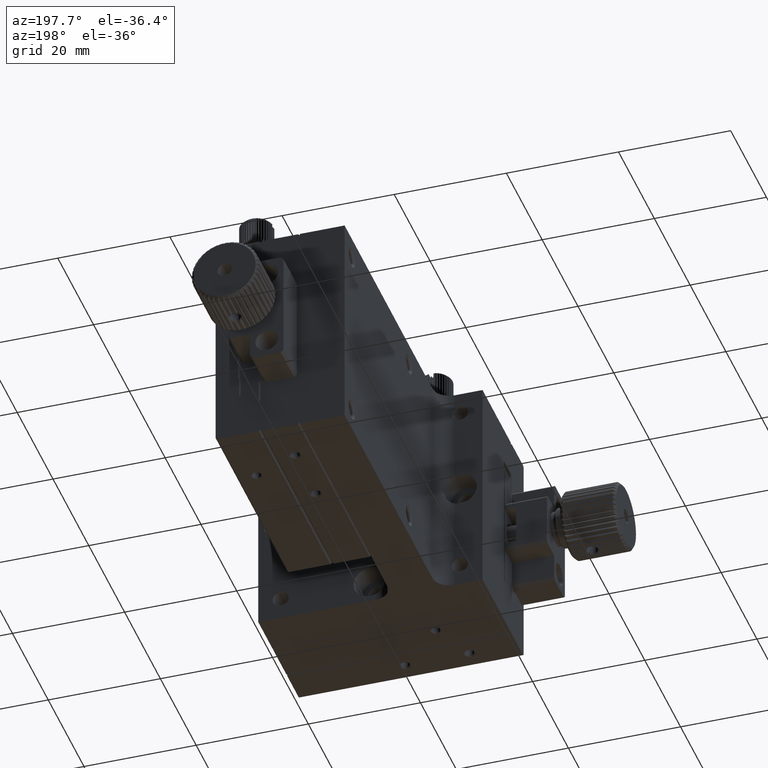
[diagram: clean part render]
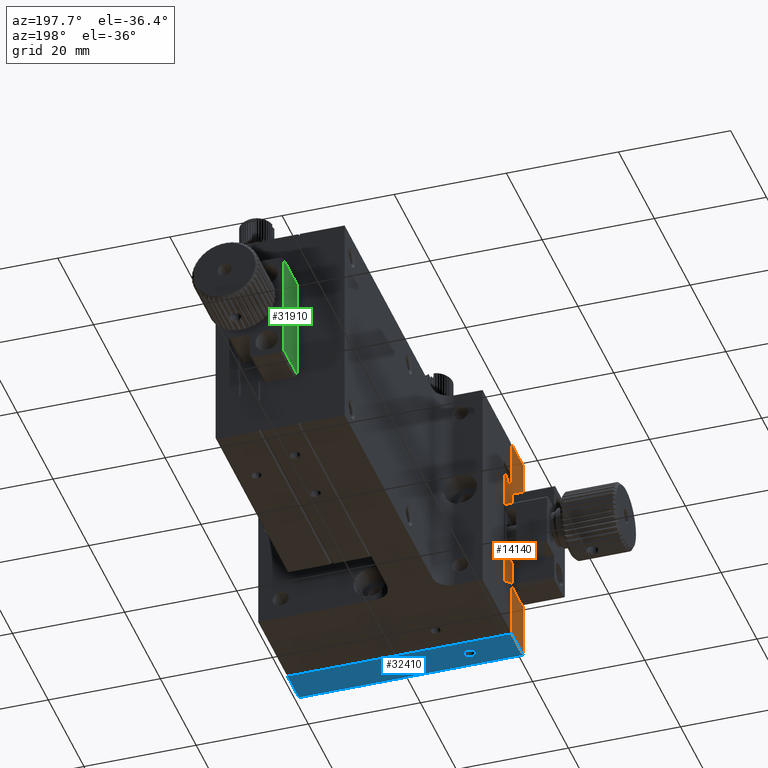
[diagram: same view with three faces highlighted in distinct colors, each labeled with its STEP entity id]
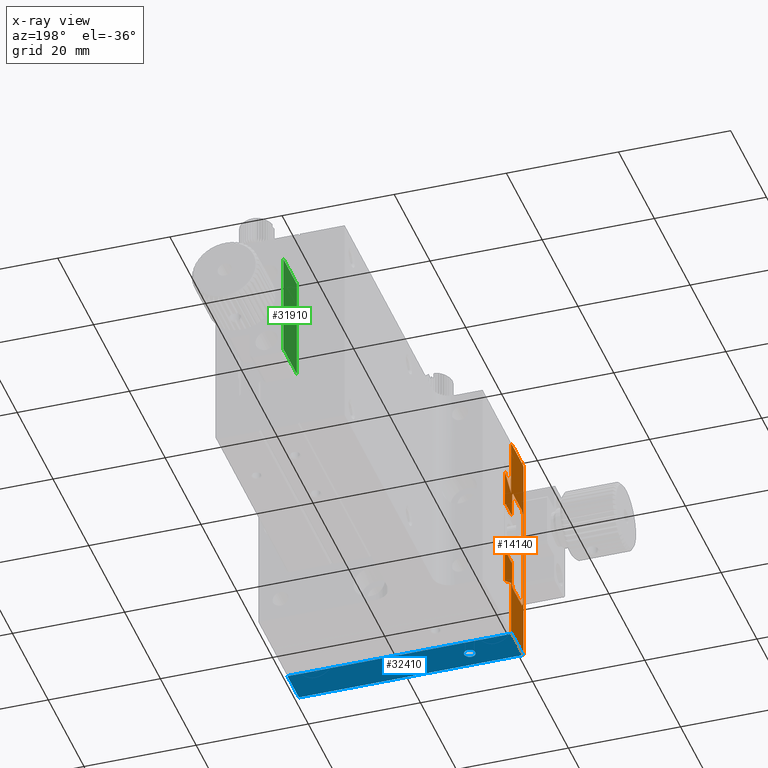
[diagram: x-ray of the same camera — body ghosted, the three highlighted faces saturated]
A machine part, auxiliary view with three faces highlighted in distinct colors.
The next image is the same camera in x-ray (body ghosted, the three faces saturated) — at least one of them is partly hidden behind the body in this view.
Their STEP definitions:

[orange] entity #14140 — the highlighted planar face has unit normal (1, 0, 0).
#35 = CARTESIAN_POINT ( 'NONE',  ( 0.000000000000000000, -13.99999999999999822, -30.00000000000000000 ) ) ;
#114 = VECTOR ( 'NONE', #3054, 1000.000000000000000 ) ;
#203 = CARTESIAN_POINT ( 'NONE',  ( 3.469446951953614189E-15, -4.999999999999999112, -25.00000000000000000 ) ) ;
#278 = VERTEX_POINT ( 'NONE', #31884 ) ;
#562 = EDGE_CURVE ( 'NONE', #25679, #34753, #24656, .T. ) ;
#711 = DIRECTION ( 'NONE',  ( 0.000000000000000000, 0.7071067811865300312, -0.7071067811865650032 ) ) ;
#809 = VECTOR ( 'NONE', #8856, 1000.000000000000000 ) ;
#824 = CARTESIAN_POINT ( 'NONE',  ( 0.000000000000000000, -15.00000000000000000, -10.00000000000000000 ) ) ;
#1086 = LINE ( 'NONE', #9198, #22220 ) ;
#1370 = EDGE_CURVE ( 'NONE', #16006, #10210, #1086, .T. ) ;
#1486 = DIRECTION ( 'NONE',  ( -0.000000000000000000, -0.7071067811865500152, -0.7071067811865450192 ) ) ;
#1489 = ORIENTED_EDGE ( 'NONE', *, *, #16721, .F. ) ;
#1648 = VERTEX_POINT ( 'NONE', #19262 ) ;
#2486 = CARTESIAN_POINT ( 'NONE',  ( 0.000000000000000000, -15.00000000000000000, 1.421085471520200056E-14 ) ) ;
#2587 = VECTOR ( 'NONE', #5242, 1000.000000000000114 ) ;
#2704 = LINE ( 'NONE', #32384, #7880 ) ;
#2976 = ORIENTED_EDGE ( 'NONE', *, *, #12379, .F. ) ;
#3054 = DIRECTION ( 'NONE',  ( -0.000000000000000000, -0.000000000000000000, 1.000000000000000000 ) ) ;
#3238 = DIRECTION ( 'NONE',  ( 0.000000000000000000, -1.000000000000000000, -0.000000000000000000 ) ) ;
#3309 = ORIENTED_EDGE ( 'NONE', *, *, #13661, .F. ) ;
#3414 = VECTOR ( 'NONE', #32353, 1000.000000000000000 ) ;
#3677 = VECTOR ( 'NONE', #20493, 1000.000000000000000 ) ;
#4073 = CARTESIAN_POINT ( 'NONE',  ( 2.602085213965210642E-15, -4.499999999999999112, -15.50000000000000000 ) ) ;
#4106 = DIRECTION ( 'NONE',  ( 0.000000000000000000, 0.000000000000000000, -1.000000000000000000 ) ) ;
#4202 = LINE ( 'NONE', #15243, #28749 ) ;
#4284 = VECTOR ( 'NONE', #29656, 1000.000000000000000 ) ;
#4341 = VECTOR ( 'NONE', #11619, 1000.000000000000000 ) ;
#4504 = LINE ( 'NONE', #15539, #33157 ) ;
#4592 = ORIENTED_EDGE ( 'NONE', *, *, #31726, .F. ) ;
#5070 = EDGE_CURVE ( 'NONE', #25679, #19334, #32038, .T. ) ;
#5130 = EDGE_CURVE ( 'NONE', #31221, #24751, #33293, .T. ) ;
#5242 = DIRECTION ( 'NONE',  ( -0.000000000000000000, 0.7071067811865474617, -0.7071067811865474617 ) ) ;
#5287 = DIRECTION ( 'NONE',  ( 0.000000000000000000, -1.000000000000000000, -0.000000000000000000 ) ) ;
#5405 = CARTESIAN_POINT ( 'NONE',  ( 0.000000000000000000, -7.999999999999998224, -29.50000000000000711 ) ) ;
#5572 = VECTOR ( 'NONE', #5287, 1000.000000000000000 ) ;
#5610 = DIRECTION ( 'NONE',  ( -0.000000000000000000, -0.000000000000000000, 1.000000000000000000 ) ) ;
#5719 = LINE ( 'NONE', #26037, #13377 ) ;
#6038 = ORIENTED_EDGE ( 'NONE', *, *, #17908, .F. ) ;
#6097 = CARTESIAN_POINT ( 'NONE',  ( 0.000000000000000000, -8.000000000000000000, -0.2999999999999830025 ) ) ;
#6373 = VERTEX_POINT ( 'NONE', #32626 ) ;
#6736 = ORIENTED_EDGE ( 'NONE', *, *, #5070, .F. ) ;
#6745 = DIRECTION ( 'NONE',  ( -0.000000000000000000, -0.000000000000000000, 1.000000000000000000 ) ) ;
#7230 = EDGE_LOOP ( 'NONE', ( #19764, #23193, #7529, #6736, #30066, #20356, #6038, #20309, #3309, #34310, #23786, #1489, #32119, #27583, #26343, #19244, #11470, #26400, #28842, #13613, #4592, #28046, #30242, #34987, #8528, #2976 ) ) ;
#7529 = ORIENTED_EDGE ( 'NONE', *, *, #33487, .F. ) ;
#7586 = EDGE_CURVE ( 'NONE', #15746, #6373, #25032, .T. ) ;
#7700 = CARTESIAN_POINT ( 'NONE',  ( 0.000000000000000000, -8.299999999999979394, -40.00000000000000000 ) ) ;
#7880 = VECTOR ( 'NONE', #3238, 1000.000000000000000 ) ;
#8349 = DIRECTION ( 'NONE',  ( 0.000000000000000000, 0.8661031798070120136, -0.4998652637743319360 ) ) ;
#8402 = DIRECTION ( 'NONE',  ( -0.000000000000000000, 1.000000000000000000, 0.000000000000000000 ) ) ;
#8452 = LINE ( 'NONE', #24673, #3414 ) ;
#8528 = ORIENTED_EDGE ( 'NONE', *, *, #20319, .F. ) ;
#8856 = DIRECTION ( 'NONE',  ( 0.000000000000000000, 0.7071067811865667796, -0.7071067811865283659 ) ) ;
#9139 = LINE ( 'NONE', #17428, #3677 ) ;
#9198 = CARTESIAN_POINT ( 'NONE',  ( 0.000000000000000000, -15.00000000000000000, -0.2999999999999830025 ) ) ;
#9252 = VERTEX_POINT ( 'NONE', #22319 ) ;
#9873 = CARTESIAN_POINT ( 'NONE',  ( 0.000000000000000000, -14.69999999999999041, -40.00000000000000711 ) ) ;
#10210 = VERTEX_POINT ( 'NONE', #16192 ) ;
#10268 = EDGE_CURVE ( 'NONE', #9252, #1648, #19447, .T. ) ;
#11083 = DIRECTION ( 'NONE',  ( 0.000000000000000000, 0.000000000000000000, -1.000000000000000000 ) ) ;
#11449 = EDGE_CURVE ( 'NONE', #32330, #18632, #20445, .T. ) ;
#11470 = ORIENTED_EDGE ( 'NONE', *, *, #25536, .F. ) ;
#11514 = EDGE_CURVE ( 'NONE', #30296, #20113, #29204, .T. ) ;
#11619 = DIRECTION ( 'NONE',  ( 0.000000000000000000, -0.8659960399471552384, -0.5000508562094910792 ) ) ;
#11714 = CARTESIAN_POINT ( 'NONE',  ( 2.602085213965210642E-15, -4.500000000000000888, -24.50000000000000355 ) ) ;
#12089 = DIRECTION ( 'NONE',  ( 0.000000000000000000, -0.000000000000000000, 1.000000000000000000 ) ) ;
#12134 = EDGE_CURVE ( 'NONE', #15746, #21549, #30401, .T. ) ;
#12256 = VECTOR ( 'NONE', #4106, 1000.000000000000000 ) ;
#12352 = CARTESIAN_POINT ( 'NONE',  ( 0.000000000000000000, -15.00000000000000000, -39.69999999999999574 ) ) ;
#12379 = EDGE_CURVE ( 'NONE', #24751, #18364, #16490, .T. ) ;
#13114 = VECTOR ( 'NONE', #34434, 1000.000000000000000 ) ;
#13132 = VERTEX_POINT ( 'NONE', #29169 ) ;
#13377 = VECTOR ( 'NONE', #6745, 1000.000000000000000 ) ;
#13613 = ORIENTED_EDGE ( 'NONE', *, *, #23631, .F. ) ;
#13627 = CARTESIAN_POINT ( 'NONE',  ( -1.734723475976807094E-15, -8.000000000000001776, -10.49999999999999822 ) ) ;
#13661 = EDGE_CURVE ( 'NONE', #6373, #10210, #27332, .T. ) ;
#13772 = CARTESIAN_POINT ( 'NONE',  ( 0.000000000000000000, -8.000000000000000000, -29.50000000000000355 ) ) ;
#13923 = LINE ( 'NONE', #25083, #16995 ) ;
#14140 = ADVANCED_FACE ( 'NONE', ( #17030 ), #24959, .F. ) ;
#14287 = CARTESIAN_POINT ( 'NONE',  ( -8.673617379884035472E-16, -4.499999999999999112, -8.478999999999979664 ) ) ;
#14306 = VERTEX_POINT ( 'NONE', #35 ) ;
#14334 = CARTESIAN_POINT ( 'NONE',  ( 0.000000000000000000, -15.00000000000000000, 0.000000000000000000 ) ) ;
#14468 = EDGE_CURVE ( 'NONE', #14306, #14660, #8452, .T. ) ;
#14660 = VERTEX_POINT ( 'NONE', #17802 ) ;
#14929 = VECTOR ( 'NONE', #33111, 1000.000000000000114 ) ;
#15056 = VERTEX_POINT ( 'NONE', #31743 ) ;
#15232 = CARTESIAN_POINT ( 'NONE',  ( 0.000000000000000000, -8.499999999999998224, -15.00000000000000000 ) ) ;
#15243 = CARTESIAN_POINT ( 'NONE',  ( 3.469446951953614189E-15, -4.499999999999999112, -15.50000000000000000 ) ) ;
#15539 = CARTESIAN_POINT ( 'NONE',  ( 0.000000000000000000, -13.99999999999999822, -10.00000000000000000 ) ) ;
#15746 = VERTEX_POINT ( 'NONE', #19206 ) ;
#15920 = CARTESIAN_POINT ( 'NONE',  ( 0.000000000000000000, -8.499999999999998224, 0.000000000000000000 ) ) ;
#16006 = VERTEX_POINT ( 'NONE', #12352 ) ;
#16141 = EDGE_CURVE ( 'NONE', #28383, #20845, #4202, .T. ) ;
#16192 = CARTESIAN_POINT ( 'NONE',  ( 0.000000000000000000, -15.00000000000000000, -0.2999999999999829470 ) ) ;
#16443 = CARTESIAN_POINT ( 'NONE',  ( 3.469446951953614189E-15, -8.499999999999998224, -10.50000000000000000 ) ) ;
#16490 = LINE ( 'NONE', #35537, #5572 ) ;
#16505 = VECTOR ( 'NONE', #8349, 1000.000000000000227 ) ;
#16711 = EDGE_CURVE ( 'NONE', #26831, #28383, #32745, .T. ) ;
#16721 = EDGE_CURVE ( 'NONE', #18632, #21549, #16772, .T. ) ;
#16772 = LINE ( 'NONE', #27741, #114 ) ;
#16995 = VECTOR ( 'NONE', #5610, 1000.000000000000000 ) ;
#17030 = FACE_OUTER_BOUND ( 'NONE', #7230, .T. ) ;
#17200 = EDGE_CURVE ( 'NONE', #278, #31221, #5719, .T. ) ;
#17428 = CARTESIAN_POINT ( 'NONE',  ( 0.000000000000000000, -14.49999999999999822, 0.000000000000000000 ) ) ;
#17802 = CARTESIAN_POINT ( 'NONE',  ( 0.000000000000000000, -14.49999999999999822, -29.50000000000000355 ) ) ;
#17908 = EDGE_CURVE ( 'NONE', #16006, #35061, #30964, .T. ) ;
#18364 = VERTEX_POINT ( 'NONE', #31260 ) ;
#18632 = VERTEX_POINT ( 'NONE', #13627 ) ;
#19071 = DIRECTION ( 'NONE',  ( -0.000000000000000000, 1.000000000000000000, 0.000000000000000000 ) ) ;
#19110 = CARTESIAN_POINT ( 'NONE',  ( 0.000000000000000000, -15.00000000000000000, -15.00000000000000000 ) ) ;
#19206 = CARTESIAN_POINT ( 'NONE',  ( 0.000000000000000000, -8.299999999999981171, 1.284779574395322754E-14 ) ) ;
#19238 = CARTESIAN_POINT ( 'NONE',  ( 0.000000000000000000, -14.69999999999998863, 1.421085471520200056E-14 ) ) ;
#19244 = ORIENTED_EDGE ( 'NONE', *, *, #16711, .F. ) ;
#19262 = CARTESIAN_POINT ( 'NONE',  ( 2.602085213965210642E-15, -9.000000000000000000, -10.00000000000000178 ) ) ;
#19334 = VERTEX_POINT ( 'NONE', #5405 ) ;
#19447 = LINE ( 'NONE', #824, #27905 ) ;
#19764 = ORIENTED_EDGE ( 'NONE', *, *, #5130, .F. ) ;
#20113 = VERTEX_POINT ( 'NONE', #28996 ) ;
#20309 = ORIENTED_EDGE ( 'NONE', *, *, #1370, .T. ) ;
#20319 = EDGE_CURVE ( 'NONE', #18364, #30296, #28088, .T. ) ;
#20356 = ORIENTED_EDGE ( 'NONE', *, *, #33977, .F. ) ;
#20445 = LINE ( 'NONE', #33529, #4341 ) ;
#20493 = DIRECTION ( 'NONE',  ( -0.000000000000000000, -0.000000000000000000, 1.000000000000000000 ) ) ;
#20678 = AXIS2_PLACEMENT_3D ( 'NONE', #14334, #33006, #11083 ) ;
#20845 = VERTEX_POINT ( 'NONE', #4073 ) ;
#20957 = CARTESIAN_POINT ( 'NONE',  ( 0.000000000000000000, -8.000000000000000000, 0.000000000000000000 ) ) ;
#21508 = CARTESIAN_POINT ( 'NONE',  ( 0.000000000000000000, -8.000000000000000000, -39.69999999999999574 ) ) ;
#21549 = VERTEX_POINT ( 'NONE', #24924 ) ;
#22099 = VECTOR ( 'NONE', #24851, 1000.000000000000000 ) ;
#22131 = LINE ( 'NONE', #33037, #29699 ) ;
#22220 = VECTOR ( 'NONE', #12089, 1000.000000000000000 ) ;
#22319 = CARTESIAN_POINT ( 'NONE',  ( 0.000000000000000000, -13.99999999999999822, -10.00000000000000000 ) ) ;
#22551 = CARTESIAN_POINT ( 'NONE',  ( 0.000000000000000000, -8.499999999999998224, 0.000000000000000000 ) ) ;
#22907 = CARTESIAN_POINT ( 'NONE',  ( 0.000000000000000000, -8.499999999999998224, -29.50000000000000000 ) ) ;
#23193 = ORIENTED_EDGE ( 'NONE', *, *, #17200, .F. ) ;
#23341 = LINE ( 'NONE', #15920, #13114 ) ;
#23503 = CARTESIAN_POINT ( 'NONE',  ( 0.000000000000000000, -9.000000000000000000, -30.00000000000000000 ) ) ;
#23544 = VECTOR ( 'NONE', #35094, 1000.000000000000000 ) ;
#23631 = EDGE_CURVE ( 'NONE', #13132, #9252, #4504, .T. ) ;
#23771 = EDGE_CURVE ( 'NONE', #20113, #14306, #2704, .T. ) ;
#23786 = ORIENTED_EDGE ( 'NONE', *, *, #12134, .T. ) ;
#24460 = DIRECTION ( 'NONE',  ( 0.000000000000000000, -0.7071067811865637820, -0.7071067811865312525 ) ) ;
#24656 = LINE ( 'NONE', #7700, #4284 ) ;
#24673 = CARTESIAN_POINT ( 'NONE',  ( 0.000000000000000000, -14.49999999999999822, -29.50000000000000355 ) ) ;
#24751 = VERTEX_POINT ( 'NONE', #29015 ) ;
#24851 = DIRECTION ( 'NONE',  ( 0.000000000000000000, -1.000000000000000000, -0.000000000000000000 ) ) ;
#24861 = CARTESIAN_POINT ( 'NONE',  ( 0.000000000000000000, -8.299999999999977618, -40.00000000000000000 ) ) ;
#24924 = CARTESIAN_POINT ( 'NONE',  ( 0.000000000000000000, -8.000000000000000000, -0.2999999999999828915 ) ) ;
#24959 = PLANE ( 'NONE',  #20678 ) ;
#25032 = LINE ( 'NONE', #2486, #22099 ) ;
#25083 = CARTESIAN_POINT ( 'NONE',  ( 0.000000000000000000, -4.499999999999999112, 0.000000000000000000 ) ) ;
#25423 = CARTESIAN_POINT ( 'NONE',  ( 0.000000000000000000, -15.00000000000000000, -39.70000000000000284 ) ) ;
#25536 = EDGE_CURVE ( 'NONE', #15056, #26831, #23341, .T. ) ;
#25679 = VERTEX_POINT ( 'NONE', #21508 ) ;
#26037 = CARTESIAN_POINT ( 'NONE',  ( 0.000000000000000000, -4.499999999999999112, 0.000000000000000000 ) ) ;
#26201 = DIRECTION ( 'NONE',  ( -0.000000000000000000, 0.7071067811865474617, -0.7071067811865474617 ) ) ;
#26343 = ORIENTED_EDGE ( 'NONE', *, *, #16141, .F. ) ;
#26400 = ORIENTED_EDGE ( 'NONE', *, *, #32325, .F. ) ;
#26831 = VERTEX_POINT ( 'NONE', #15232 ) ;
#27238 = LINE ( 'NONE', #16443, #2587 ) ;
#27332 = LINE ( 'NONE', #19238, #30388 ) ;
#27447 = LINE ( 'NONE', #13772, #16505 ) ;
#27583 = ORIENTED_EDGE ( 'NONE', *, *, #32323, .F. ) ;
#27741 = CARTESIAN_POINT ( 'NONE',  ( 0.000000000000000000, -8.000000000000000000, 0.000000000000000000 ) ) ;
#27743 = DIRECTION ( 'NONE',  ( -0.000000000000000000, 0.7071067811865470176, 0.7071067811865480168 ) ) ;
#27905 = VECTOR ( 'NONE', #19071, 1000.000000000000000 ) ;
#28046 = ORIENTED_EDGE ( 'NONE', *, *, #14468, .F. ) ;
#28088 = LINE ( 'NONE', #22551, #12256 ) ;
#28383 = VERTEX_POINT ( 'NONE', #31330 ) ;
#28749 = VECTOR ( 'NONE', #26201, 1000.000000000000114 ) ;
#28842 = ORIENTED_EDGE ( 'NONE', *, *, #10268, .F. ) ;
#28996 = CARTESIAN_POINT ( 'NONE',  ( 0.000000000000000000, -9.000000000000000000, -30.00000000000000000 ) ) ;
#29015 = CARTESIAN_POINT ( 'NONE',  ( 2.602085213965210642E-15, -4.999999999999999112, -25.00000000000000000 ) ) ;
#29169 = CARTESIAN_POINT ( 'NONE',  ( 0.000000000000000000, -14.49999999999999822, -10.50000000000000000 ) ) ;
#29204 = LINE ( 'NONE', #23503, #34828 ) ;
#29656 = DIRECTION ( 'NONE',  ( 0.000000000000000000, -0.7071067811865170416, -0.7071067811865779928 ) ) ;
#29699 = VECTOR ( 'NONE', #8402, 1000.000000000000000 ) ;
#30066 = ORIENTED_EDGE ( 'NONE', *, *, #562, .T. ) ;
#30242 = ORIENTED_EDGE ( 'NONE', *, *, #23771, .F. ) ;
#30296 = VERTEX_POINT ( 'NONE', #22907 ) ;
#30388 = VECTOR ( 'NONE', #24460, 1000.000000000000114 ) ;
#30401 = LINE ( 'NONE', #6097, #30849 ) ;
#30849 = VECTOR ( 'NONE', #711, 1000.000000000000000 ) ;
#30964 = LINE ( 'NONE', #25423, #809 ) ;
#31138 = VECTOR ( 'NONE', #32926, 1000.000000000000000 ) ;
#31221 = VERTEX_POINT ( 'NONE', #11714 ) ;
#31260 = CARTESIAN_POINT ( 'NONE',  ( 0.000000000000000000, -8.499999999999998224, -25.00000000000000000 ) ) ;
#31330 = CARTESIAN_POINT ( 'NONE',  ( 2.602085213965210642E-15, -4.999999999999997335, -15.00000000000000000 ) ) ;
#31726 = EDGE_CURVE ( 'NONE', #14660, #13132, #9139, .T. ) ;
#31743 = CARTESIAN_POINT ( 'NONE',  ( 2.602085213965210642E-15, -8.499999999999998224, -10.50000000000000000 ) ) ;
#31884 = CARTESIAN_POINT ( 'NONE',  ( 0.000000000000000000, -4.499999999999997335, -31.51999999999999247 ) ) ;
#32038 = LINE ( 'NONE', #20957, #23544 ) ;
#32119 = ORIENTED_EDGE ( 'NONE', *, *, #11449, .F. ) ;
#32323 = EDGE_CURVE ( 'NONE', #20845, #32330, #13923, .T. ) ;
#32325 = EDGE_CURVE ( 'NONE', #1648, #15056, #27238, .T. ) ;
#32330 = VERTEX_POINT ( 'NONE', #14287 ) ;
#32353 = DIRECTION ( 'NONE',  ( -0.000000000000000000, -0.7071067811865500152, 0.7071067811865450192 ) ) ;
#32384 = CARTESIAN_POINT ( 'NONE',  ( 0.000000000000000000, -15.00000000000000000, -30.00000000000000000 ) ) ;
#32626 = CARTESIAN_POINT ( 'NONE',  ( 0.000000000000000000, -14.69999999999998863, 1.421085471520200056E-14 ) ) ;
#32745 = LINE ( 'NONE', #19110, #31138 ) ;
#32926 = DIRECTION ( 'NONE',  ( -0.000000000000000000, 1.000000000000000000, 0.000000000000000000 ) ) ;
#33006 = DIRECTION ( 'NONE',  ( 1.000000000000000000, 0.000000000000000000, 0.000000000000000000 ) ) ;
#33037 = CARTESIAN_POINT ( 'NONE',  ( 0.000000000000000000, -15.00000000000000000, -40.00000000000000000 ) ) ;
#33111 = DIRECTION ( 'NONE',  ( -0.000000000000000000, -0.7071067811865474617, -0.7071067811865474617 ) ) ;
#33157 = VECTOR ( 'NONE', #27743, 1000.000000000000000 ) ;
#33293 = LINE ( 'NONE', #203, #14929 ) ;
#33487 = EDGE_CURVE ( 'NONE', #19334, #278, #27447, .T. ) ;
#33529 = CARTESIAN_POINT ( 'NONE',  ( 0.000000000000000000, -4.499999999999999112, -8.478999999999979664 ) ) ;
#33977 = EDGE_CURVE ( 'NONE', #35061, #34753, #22131, .T. ) ;
#34310 = ORIENTED_EDGE ( 'NONE', *, *, #7586, .F. ) ;
#34434 = DIRECTION ( 'NONE',  ( 0.000000000000000000, 0.000000000000000000, -1.000000000000000000 ) ) ;
#34753 = VERTEX_POINT ( 'NONE', #24861 ) ;
#34828 = VECTOR ( 'NONE', #1486, 1000.000000000000000 ) ;
#34987 = ORIENTED_EDGE ( 'NONE', *, *, #11514, .F. ) ;
#35061 = VERTEX_POINT ( 'NONE', #9873 ) ;
#35094 = DIRECTION ( 'NONE',  ( -0.000000000000000000, -0.000000000000000000, 1.000000000000000000 ) ) ;
#35537 = CARTESIAN_POINT ( 'NONE',  ( 0.000000000000000000, -15.00000000000000000, -25.00000000000000000 ) ) ;

[blue] entity #32410 — the highlighted planar face has unit normal (0, 0, 1).
#49 = FACE_OUTER_BOUND ( 'NONE', #21594, .T. ) ;
#400 = PLANE ( 'NONE',  #22188 ) ;
#922 = EDGE_CURVE ( 'NONE', #1440, #34753, #13577, .T. ) ;
#1440 = VERTEX_POINT ( 'NONE', #19489 ) ;
#4306 = VERTEX_POINT ( 'NONE', #26141 ) ;
#6054 = VECTOR ( 'NONE', #13395, 1000.000000000000000 ) ;
#7508 = LINE ( 'NONE', #18497, #9975 ) ;
#8106 = DIRECTION ( 'NONE',  ( -1.000000000000000000, 0.000000000000000000, 0.000000000000000000 ) ) ;
#8361 = VERTEX_POINT ( 'NONE', #11621 ) ;
#8402 = DIRECTION ( 'NONE',  ( -0.000000000000000000, 1.000000000000000000, 0.000000000000000000 ) ) ;
#9146 = EDGE_CURVE ( 'NONE', #33588, #1440, #7508, .T. ) ;
#9337 = ORIENTED_EDGE ( 'NONE', *, *, #13278, .F. ) ;
#9873 = CARTESIAN_POINT ( 'NONE',  ( 0.000000000000000000, -14.69999999999999041, -40.00000000000000711 ) ) ;
#9975 = VECTOR ( 'NONE', #29463, 1000.000000000000000 ) ;
#9996 = ORIENTED_EDGE ( 'NONE', *, *, #922, .F. ) ;
#10523 = EDGE_LOOP ( 'NONE', ( #33373 ) ) ;
#11185 = CARTESIAN_POINT ( 'NONE',  ( 8.500000000000000000, -11.50000000000000000, -40.00000000002046363 ) ) ;
#11621 = CARTESIAN_POINT ( 'NONE',  ( 19.00000000006230039, -11.50000000000000000, -39.99999999996362021 ) ) ;
#11625 = CIRCLE ( 'NONE', #16218, 1.000000000006821876 ) ;
#12380 = ORIENTED_EDGE ( 'NONE', *, *, #9146, .F. ) ;
#13278 = EDGE_CURVE ( 'NONE', #8361, #8361, #26364, .T. ) ;
#13395 = DIRECTION ( 'NONE',  ( -1.000000000000000000, -0.000000000000000000, 0.000000000000000000 ) ) ;
#13517 = DIRECTION ( 'NONE',  ( -1.000000000000000000, 0.000000000000000000, 0.000000000000000000 ) ) ;
#13577 = LINE ( 'NONE', #24929, #6054 ) ;
#16218 = AXIS2_PLACEMENT_3D ( 'NONE', #11185, #35274, #8106 ) ;
#16679 = EDGE_CURVE ( 'NONE', #4306, #4306, #11625, .T. ) ;
#16803 = FACE_BOUND ( 'NONE', #10523, .T. ) ;
#17165 = DIRECTION ( 'NONE',  ( 1.000000000000000000, 0.000000000000000000, -0.000000000000000000 ) ) ;
#17630 = VECTOR ( 'NONE', #28880, 1000.000000000000000 ) ;
#17741 = EDGE_LOOP ( 'NONE', ( #9337 ) ) ;
#18497 = CARTESIAN_POINT ( 'NONE',  ( 40.00000000000000000, -15.00000000000000000, -40.00000000000000000 ) ) ;
#19489 = CARTESIAN_POINT ( 'NONE',  ( 40.00000000000000000, -8.299999999999977618, -40.00000000000000000 ) ) ;
#19689 = CARTESIAN_POINT ( 'NONE',  ( 40.00000000000000000, -14.69999999999998863, -40.00000000000000000 ) ) ;
#20618 = CARTESIAN_POINT ( 'NONE',  ( 40.00000000000000000, -14.69999999999999041, -40.00000000000000711 ) ) ;
#21594 = EDGE_LOOP ( 'NONE', ( #9996, #12380, #28282, #22533 ) ) ;
#22131 = LINE ( 'NONE', #33037, #29699 ) ;
#22188 = AXIS2_PLACEMENT_3D ( 'NONE', #19689, #30619, #17165 ) ;
#22533 = ORIENTED_EDGE ( 'NONE', *, *, #33977, .T. ) ;
#22824 = LINE ( 'NONE', #23011, #17630 ) ;
#23011 = CARTESIAN_POINT ( 'NONE',  ( 40.00000000000000000, -14.69999999999999396, -40.00000000000000711 ) ) ;
#23085 = EDGE_CURVE ( 'NONE', #33588, #35061, #22824, .T. ) ;
#24861 = CARTESIAN_POINT ( 'NONE',  ( 0.000000000000000000, -8.299999999999977618, -40.00000000000000000 ) ) ;
#24929 = CARTESIAN_POINT ( 'NONE',  ( 40.00000000000000000, -8.299999999999979394, -40.00000000000000000 ) ) ;
#26141 = CARTESIAN_POINT ( 'NONE',  ( 7.499999999993178790, -11.50000000000000000, -40.00000000002046363 ) ) ;
#26364 = CIRCLE ( 'NONE', #31483, 0.9999999999377000570 ) ;
#27768 = FACE_BOUND ( 'NONE', #17741, .T. ) ;
#28282 = ORIENTED_EDGE ( 'NONE', *, *, #23085, .T. ) ;
#28880 = DIRECTION ( 'NONE',  ( -1.000000000000000000, -0.000000000000000000, 0.000000000000000000 ) ) ;
#29463 = DIRECTION ( 'NONE',  ( -0.000000000000000000, 1.000000000000000000, 0.000000000000000000 ) ) ;
#29699 = VECTOR ( 'NONE', #8402, 1000.000000000000000 ) ;
#30619 = DIRECTION ( 'NONE',  ( 0.000000000000000000, 0.000000000000000000, 1.000000000000000000 ) ) ;
#31483 = AXIS2_PLACEMENT_3D ( 'NONE', #32373, #35261, #13517 ) ;
#32373 = CARTESIAN_POINT ( 'NONE',  ( 20.00000000000000000, -11.50000000000000000, -39.99999999996362021 ) ) ;
#32410 = ADVANCED_FACE ( 'NONE', ( #49, #16803, #27768 ), #400, .F. ) ;
#33037 = CARTESIAN_POINT ( 'NONE',  ( 0.000000000000000000, -15.00000000000000000, -40.00000000000000000 ) ) ;
#33373 = ORIENTED_EDGE ( 'NONE', *, *, #16679, .F. ) ;
#33588 = VERTEX_POINT ( 'NONE', #20618 ) ;
#33977 = EDGE_CURVE ( 'NONE', #35061, #34753, #22131, .T. ) ;
#34753 = VERTEX_POINT ( 'NONE', #24861 ) ;
#35061 = VERTEX_POINT ( 'NONE', #9873 ) ;
#35261 = DIRECTION ( 'NONE',  ( 0.000000000000000000, 0.000000000000000000, -1.000000000000000000 ) ) ;
#35274 = DIRECTION ( 'NONE',  ( 0.000000000000000000, 0.000000000000000000, -1.000000000000000000 ) ) ;

[green] entity #31910 — the highlighted planar face has unit normal (-1, -0, 0).
#1123 = VECTOR ( 'NONE', #20556, 1000.000000000000000 ) ;
#1144 = ORIENTED_EDGE ( 'NONE', *, *, #3388, .T. ) ;
#1150 = LINE ( 'NONE', #11804, #17120 ) ;
#2823 = EDGE_CURVE ( 'NONE', #3855, #27585, #10079, .T. ) ;
#3388 = EDGE_CURVE ( 'NONE', #27585, #11651, #19587, .T. ) ;
#3772 = LINE ( 'NONE', #25777, #1123 ) ;
#3855 = VERTEX_POINT ( 'NONE', #19545 ) ;
#4110 = VERTEX_POINT ( 'NONE', #35486 ) ;
#4450 = VECTOR ( 'NONE', #29328, 1000.000000000000000 ) ;
#4745 = PLANE ( 'NONE',  #16976 ) ;
#5322 = DIRECTION ( 'NONE',  ( 0.000000000000000000, -1.000000000000000000, 0.000000000000000000 ) ) ;
#5410 = EDGE_CURVE ( 'NONE', #11651, #4110, #3772, .T. ) ;
#6191 = DIRECTION ( 'NONE',  ( -0.000000000000000000, 1.000000000000000000, -0.000000000000000000 ) ) ;
#8009 = CARTESIAN_POINT ( 'NONE',  ( 16.50000000000000000, 67.50000000000000000, -29.50000000000000000 ) ) ;
#10079 = LINE ( 'NONE', #34540, #4450 ) ;
#11049 = EDGE_LOOP ( 'NONE', ( #21614, #1144, #33611, #14849 ) ) ;
#11651 = VERTEX_POINT ( 'NONE', #18415 ) ;
#11804 = CARTESIAN_POINT ( 'NONE',  ( 16.50000000000000000, 67.50000000000000000, -10.49999999999999467 ) ) ;
#12604 = EDGE_CURVE ( 'NONE', #4110, #3855, #1150, .T. ) ;
#14849 = ORIENTED_EDGE ( 'NONE', *, *, #12604, .T. ) ;
#16976 = AXIS2_PLACEMENT_3D ( 'NONE', #21365, #29785, #18302 ) ;
#17120 = VECTOR ( 'NONE', #6191, 1000.000000000000000 ) ;
#18302 = DIRECTION ( 'NONE',  ( 0.000000000000000000, -0.000000000000000000, -1.000000000000000000 ) ) ;
#18415 = CARTESIAN_POINT ( 'NONE',  ( 16.50000000000000000, 60.00000000000000000, -29.50000000000000000 ) ) ;
#18806 = VECTOR ( 'NONE', #5322, 1000.000000000000000 ) ;
#19545 = CARTESIAN_POINT ( 'NONE',  ( 16.50000000000000000, 67.50000000000000000, -10.49999999999999467 ) ) ;
#19587 = LINE ( 'NONE', #32672, #18806 ) ;
#20556 = DIRECTION ( 'NONE',  ( -0.000000000000000000, -0.000000000000000000, 1.000000000000000000 ) ) ;
#21365 = CARTESIAN_POINT ( 'NONE',  ( 16.50000000000000000, 67.50000000000000000, -10.49999999999999467 ) ) ;
#21614 = ORIENTED_EDGE ( 'NONE', *, *, #2823, .T. ) ;
#25777 = CARTESIAN_POINT ( 'NONE',  ( 16.50000000000000000, 60.00000000000000000, 4.898587196589409870E-15 ) ) ;
#27585 = VERTEX_POINT ( 'NONE', #8009 ) ;
#29328 = DIRECTION ( 'NONE',  ( 0.000000000000000000, -0.000000000000000000, -1.000000000000000000 ) ) ;
#29785 = DIRECTION ( 'NONE',  ( -1.000000000000000000, -0.000000000000000000, 0.000000000000000000 ) ) ;
#31910 = ADVANCED_FACE ( 'NONE', ( #34822 ), #4745, .T. ) ;
#32672 = CARTESIAN_POINT ( 'NONE',  ( 16.50000000000000000, 67.50000000000000000, -29.50000000000000355 ) ) ;
#33611 = ORIENTED_EDGE ( 'NONE', *, *, #5410, .T. ) ;
#34540 = CARTESIAN_POINT ( 'NONE',  ( 16.50000000000000000, 67.50000000000000000, -10.49999999999999467 ) ) ;
#34822 = FACE_OUTER_BOUND ( 'NONE', #11049, .T. ) ;
#35486 = CARTESIAN_POINT ( 'NONE',  ( 16.50000000000000000, 60.00000000000000000, -10.49999999999999467 ) ) ;